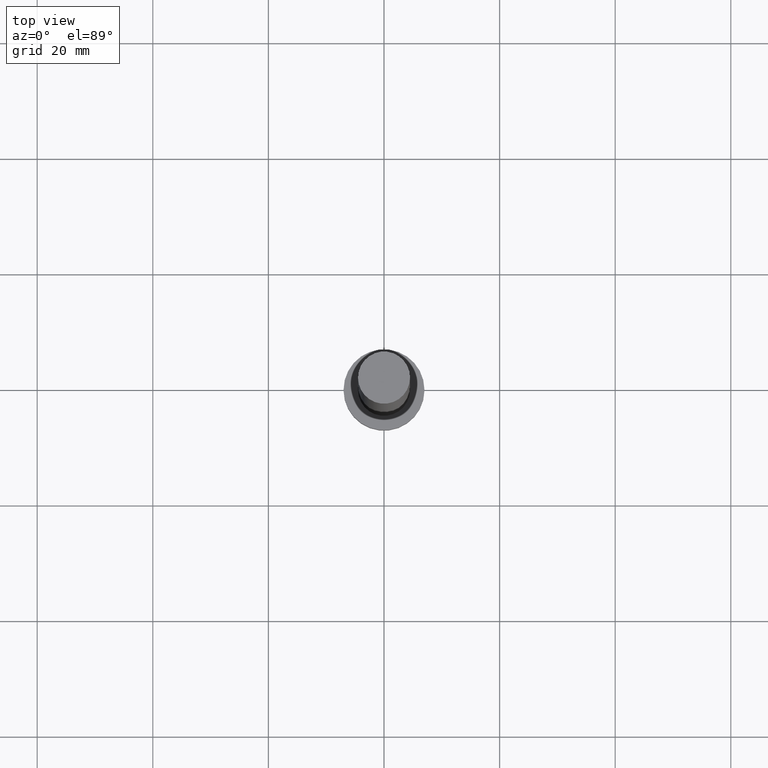
[diagram: clean part render]
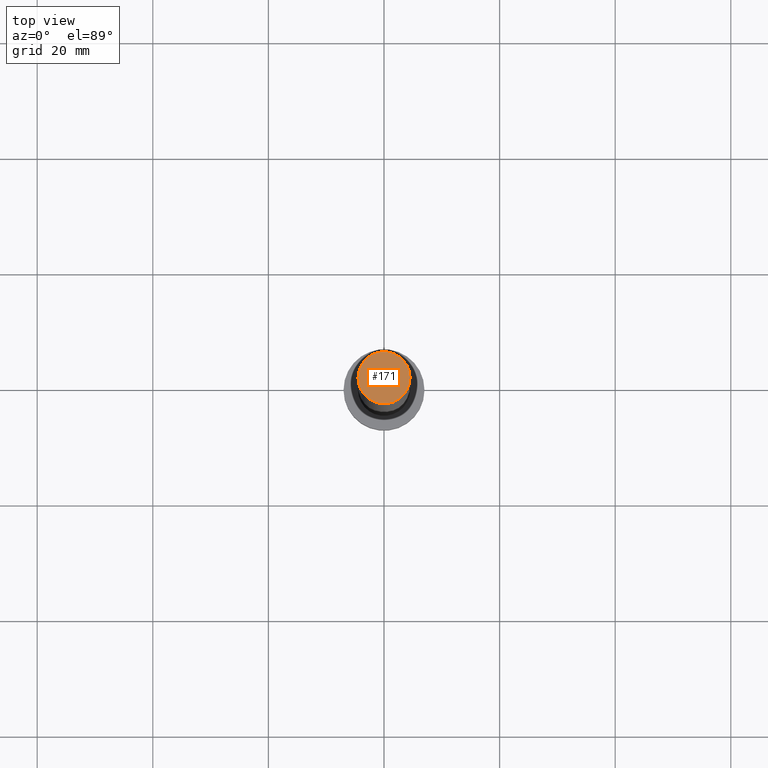
[diagram: same view with one face highlighted and labeled with its STEP entity id]
A machine part, top view. The second image highlights one B-rep face of the part: STEP entity #171.
In plain terms, the highlighted planar face has unit normal (0, 0, 1).
Its self-contained STEP definition (entity closure, byte-faithful):
#1 = AXIS2_PLACEMENT_3D ( 'NONE', #152, #16, #151 ) ;
#4 = DIRECTION ( 'NONE',  ( 0.000000000000000000, 0.000000000000000000, 1.000000000000000000 ) ) ;
#15 = CARTESIAN_POINT ( 'NONE',  ( -4.500000000000000888, 0.000000000000000000, 125.0000000000000000 ) ) ;
#16 = DIRECTION ( 'NONE',  ( 0.000000000000000000, 0.000000000000000000, 1.000000000000000000 ) ) ;
#42 = CARTESIAN_POINT ( 'NONE',  ( 0.000000000000000000, 0.000000000000000000, 125.0000000000000000 ) ) ;
#46 = CIRCLE ( 'NONE', #138, 4.500000000000000888 ) ;
#82 = CIRCLE ( 'NONE', #197, 4.500000000000000888 ) ;
#89 = VERTEX_POINT ( 'NONE', #93 ) ;
#93 = CARTESIAN_POINT ( 'NONE',  ( 4.500000000000000888, 5.510910596163089556E-16, 125.0000000000000000 ) ) ;
#104 = EDGE_CURVE ( 'NONE', #89, #168, #82, .T. ) ;
#132 = CARTESIAN_POINT ( 'NONE',  ( 0.000000000000000000, 0.000000000000000000, 125.0000000000000000 ) ) ;
#138 = AXIS2_PLACEMENT_3D ( 'NONE', #132, #4, #193 ) ;
#141 = EDGE_CURVE ( 'NONE', #168, #89, #46, .T. ) ;
#151 = DIRECTION ( 'NONE',  ( 1.000000000000000000, 0.000000000000000000, -0.000000000000000000 ) ) ;
#152 = CARTESIAN_POINT ( 'NONE',  ( 0.000000000000000000, 0.000000000000000000, 125.0000000000000000 ) ) ;
#157 = PLANE ( 'NONE',  #1 ) ;
#168 = VERTEX_POINT ( 'NONE', #15 ) ;
#171 = ADVANCED_FACE ( 'NONE', ( #172 ), #157, .T. ) ;
#172 = FACE_OUTER_BOUND ( 'NONE', #231, .T. ) ;
#173 = DIRECTION ( 'NONE',  ( 1.000000000000000000, 0.000000000000000000, 0.000000000000000000 ) ) ;
#188 = ORIENTED_EDGE ( 'NONE', *, *, #104, .T. ) ;
#193 = DIRECTION ( 'NONE',  ( 1.000000000000000000, 0.000000000000000000, 0.000000000000000000 ) ) ;
#197 = AXIS2_PLACEMENT_3D ( 'NONE', #42, #219, #173 ) ;
#202 = ORIENTED_EDGE ( 'NONE', *, *, #141, .T. ) ;
#219 = DIRECTION ( 'NONE',  ( 0.000000000000000000, 0.000000000000000000, 1.000000000000000000 ) ) ;
#231 = EDGE_LOOP ( 'NONE', ( #202, #188 ) ) ;